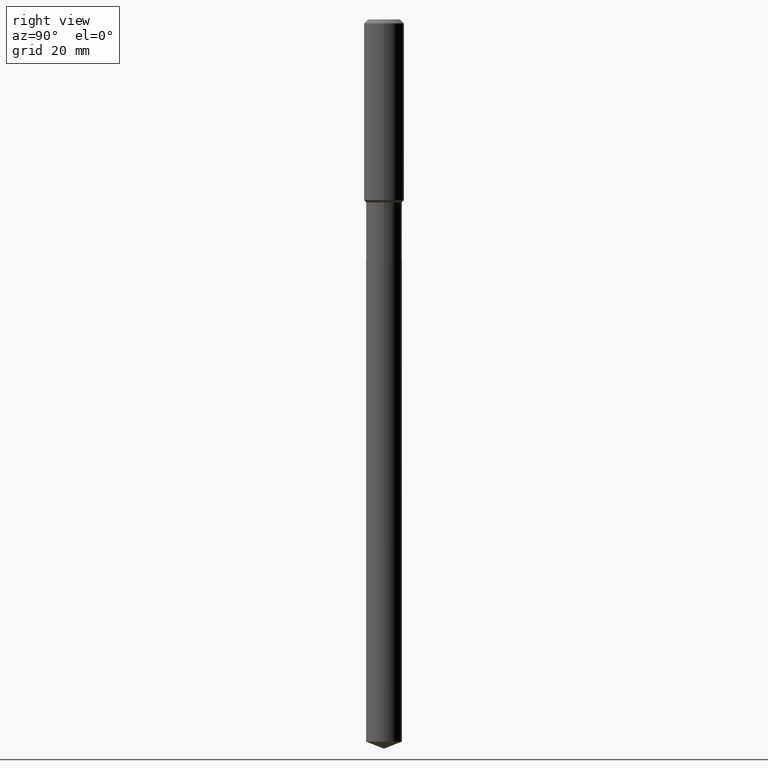
[diagram: clean part render]
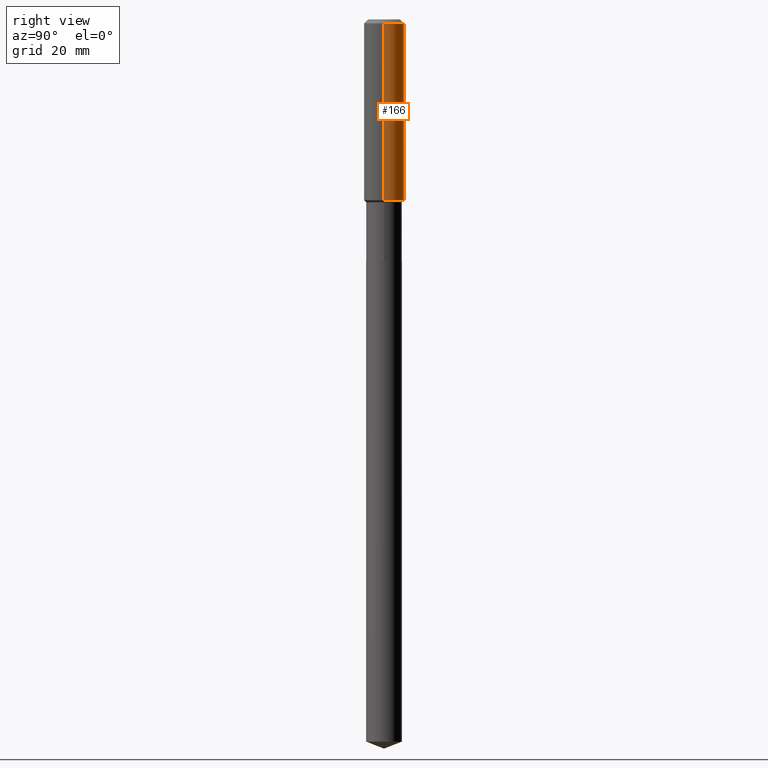
[diagram: same view with one face highlighted and labeled with its STEP entity id]
A machine part, right view. The second image highlights one B-rep face of the part: STEP entity #166.
In plain terms, the highlighted cylindrical surface (edge-blend (fillet) strip) has radius 5 mm, axis along (-0, 0, 1).
Its self-contained STEP definition (entity closure, byte-faithful):
#1 = CARTESIAN_POINT ( 'NONE',  ( -0.1968500000000000250, -1.770025428536726252E-15, -0.03937000000000024508 ) ) ;
#24 = DIRECTION ( 'NONE',  ( -2.445468806185136877E-29, 3.491481338843145188E-15, 1.000000000000000000 ) ) ;
#41 = VERTEX_POINT ( 'NONE', #44 ) ;
#43 = ORIENTED_EDGE ( 'NONE', *, *, #45, .F. ) ;
#44 = CARTESIAN_POINT ( 'NONE',  ( -0.1968500000000002192, -4.801294612106955500E-15, -1.775749999999999496 ) ) ;
#45 = EDGE_CURVE ( 'NONE', #326, #116, #467, .T. ) ;
#46 = CARTESIAN_POINT ( 'NONE',  ( 9.627810689950943645E-31, -1.374596203102555315E-16, -0.03937000000000024508 ) ) ;
#48 = CARTESIAN_POINT ( 'NONE',  ( -0.1968500000000001082, 1.398703375343757985E-15, -9.682923725166787881E-30 ) ) ;
#59 = CYLINDRICAL_SURFACE ( 'NONE', #433, 0.1968500000000001082 ) ;
#99 = EDGE_CURVE ( 'NONE', #41, #116, #119, .T. ) ;
#116 = VERTEX_POINT ( 'NONE', #1 ) ;
#119 = LINE ( 'NONE', #48, #241 ) ;
#135 = DIRECTION ( 'NONE',  ( 1.000000000000000000, -6.982962677686265922E-15, 0.000000000000000000 ) ) ;
#152 = ORIENTED_EDGE ( 'NONE', *, *, #205, .T. ) ;
#163 = VECTOR ( 'NONE', #24, 39.37007874015748143 ) ;
#165 = DIRECTION ( 'NONE',  ( -2.445468806185136597E-29, 3.491481338843145583E-15, 1.000000000000000000 ) ) ;
#166 = ADVANCED_FACE ( 'NONE', ( #396 ), #59, .T. ) ;
#176 = AXIS2_PLACEMENT_3D ( 'NONE', #463, #199, #135 ) ;
#190 = CARTESIAN_POINT ( 'NONE',  ( 0.1968500000000000250, -1.512055823412797189E-15, -0.03937000000000024508 ) ) ;
#199 = DIRECTION ( 'NONE',  ( -2.445468806185136597E-29, 3.491481338843145583E-15, 1.000000000000000000 ) ) ;
#205 = EDGE_CURVE ( 'NONE', #219, #41, #458, .T. ) ;
#219 = VERTEX_POINT ( 'NONE', #466 ) ;
#241 = VECTOR ( 'NONE', #254, 39.37007874015748143 ) ;
#242 = AXIS2_PLACEMENT_3D ( 'NONE', #46, #394, #351 ) ;
#248 = EDGE_CURVE ( 'NONE', #219, #326, #478, .T. ) ;
#254 = DIRECTION ( 'NONE',  ( -2.445468806185136877E-29, 3.491481338843145188E-15, 1.000000000000000000 ) ) ;
#261 = ORIENTED_EDGE ( 'NONE', *, *, #248, .F. ) ;
#293 = EDGE_LOOP ( 'NONE', ( #152, #470, #43, #261 ) ) ;
#311 = CARTESIAN_POINT ( 'NONE',  ( 0.000000000000000000, 0.000000000000000000, 0.000000000000000000 ) ) ;
#326 = VERTEX_POINT ( 'NONE', #190 ) ;
#351 = DIRECTION ( 'NONE',  ( 1.000000000000000000, -6.982962677686265922E-15, 0.000000000000000000 ) ) ;
#388 = DIRECTION ( 'NONE',  ( 1.000000000000000000, -6.982962677686266711E-15, 4.876176775795935793E-29 ) ) ;
#394 = DIRECTION ( 'NONE',  ( -2.445468806185136597E-29, 3.491481338843145583E-15, 1.000000000000000000 ) ) ;
#396 = FACE_OUTER_BOUND ( 'NONE', #293, .T. ) ;
#404 = CARTESIAN_POINT ( 'NONE',  ( 0.1968500000000001082, -1.374596203102542397E-15, 9.598753983154305062E-30 ) ) ;
#433 = AXIS2_PLACEMENT_3D ( 'NONE', #311, #165, #388 ) ;
#458 = CIRCLE ( 'NONE', #176, 0.1968500000000002192 ) ;
#463 = CARTESIAN_POINT ( 'NONE',  ( 4.342541232583255428E-29, -6.199997987450713288E-15, -1.775749999999999496 ) ) ;
#466 = CARTESIAN_POINT ( 'NONE',  ( 0.1968500000000002192, -7.574594190553257263E-15, -1.775749999999999496 ) ) ;
#467 = CIRCLE ( 'NONE', #242, 0.1968500000000000250 ) ;
#470 = ORIENTED_EDGE ( 'NONE', *, *, #99, .T. ) ;
#478 = LINE ( 'NONE', #404, #163 ) ;